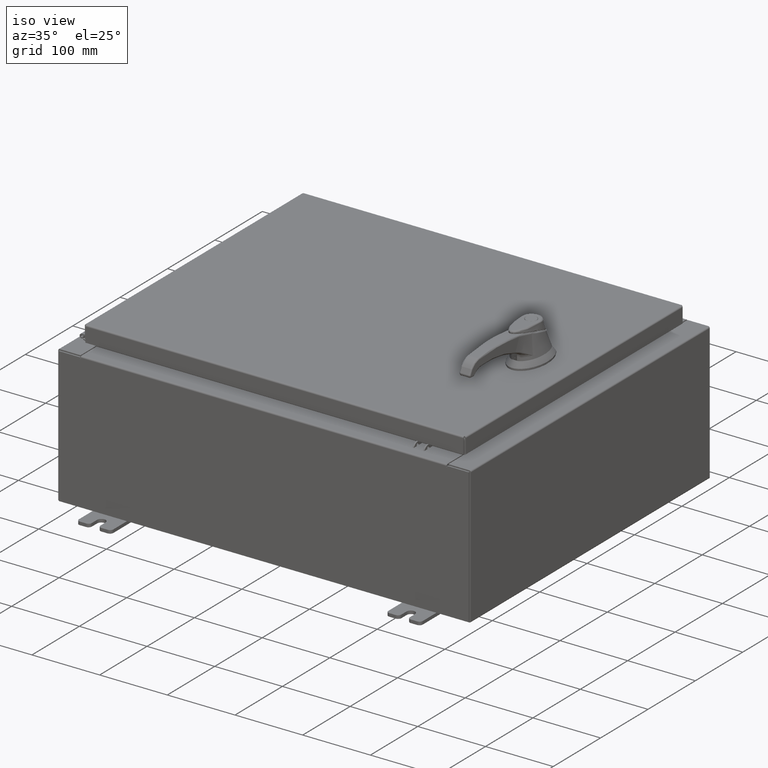
[diagram: clean part render]
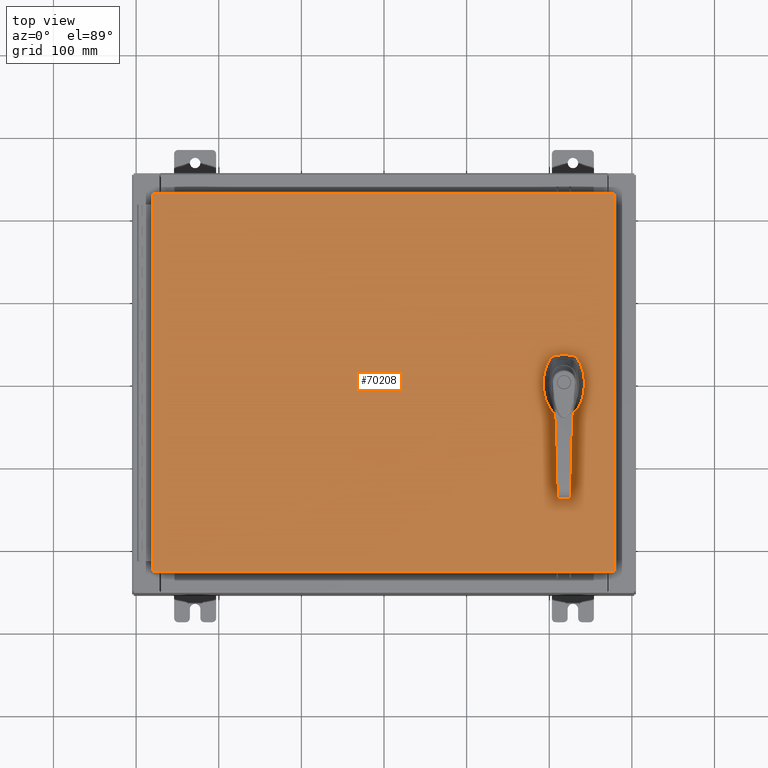
[diagram: tour spotlight — one face highlighted and labeled with its STEP entity id]
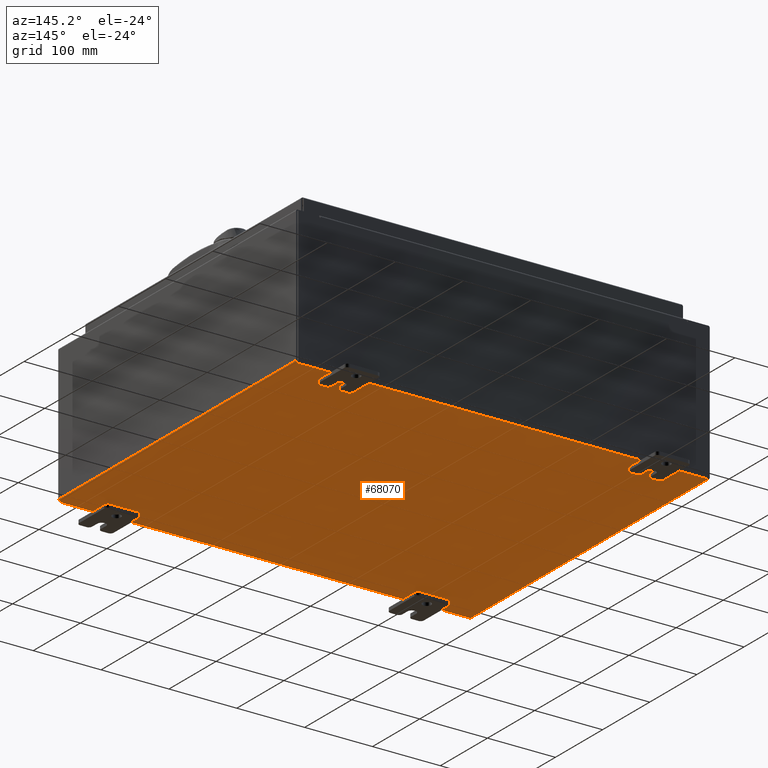
[diagram: tour spotlight — one face highlighted and labeled with its STEP entity id]
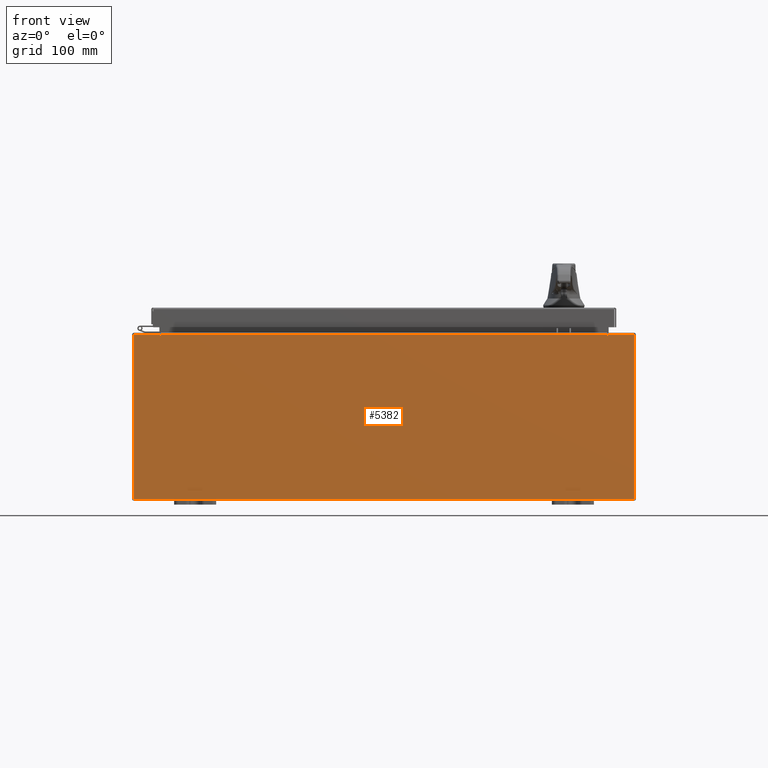
[diagram: tour spotlight — one face highlighted and labeled with its STEP entity id]
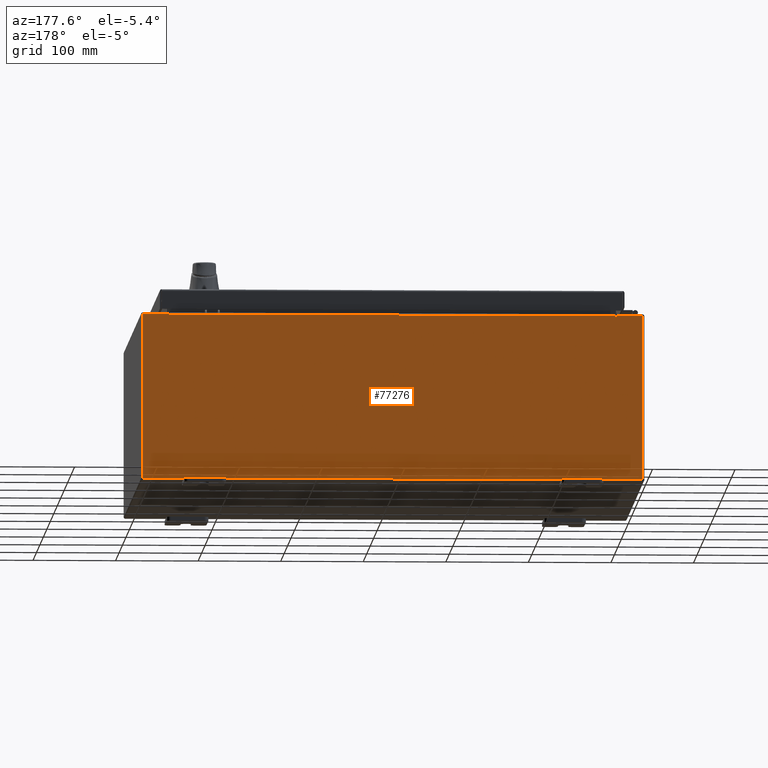
[diagram: tour spotlight — one face highlighted and labeled with its STEP entity id]
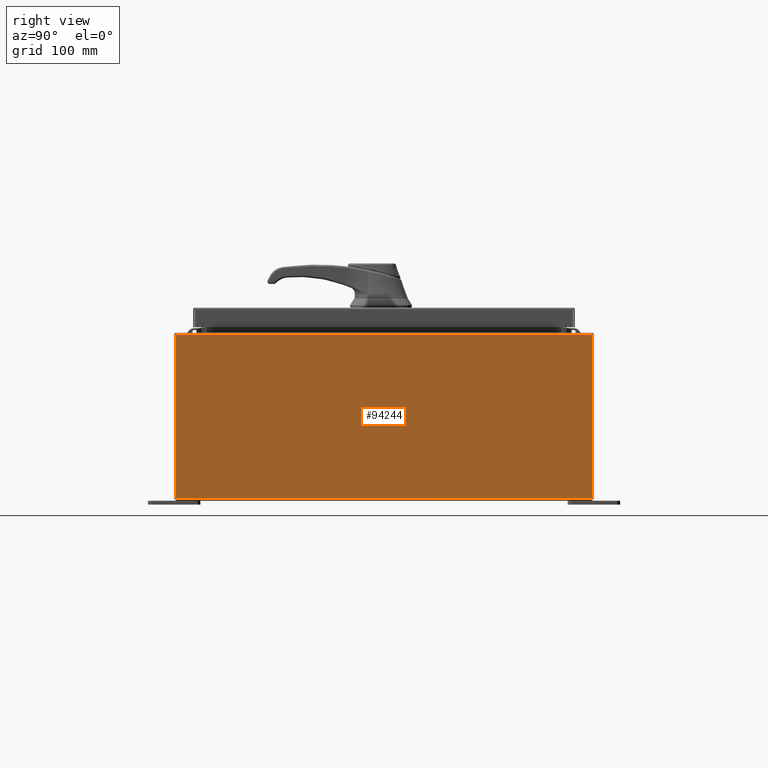
[diagram: tour spotlight — one face highlighted and labeled with its STEP entity id]
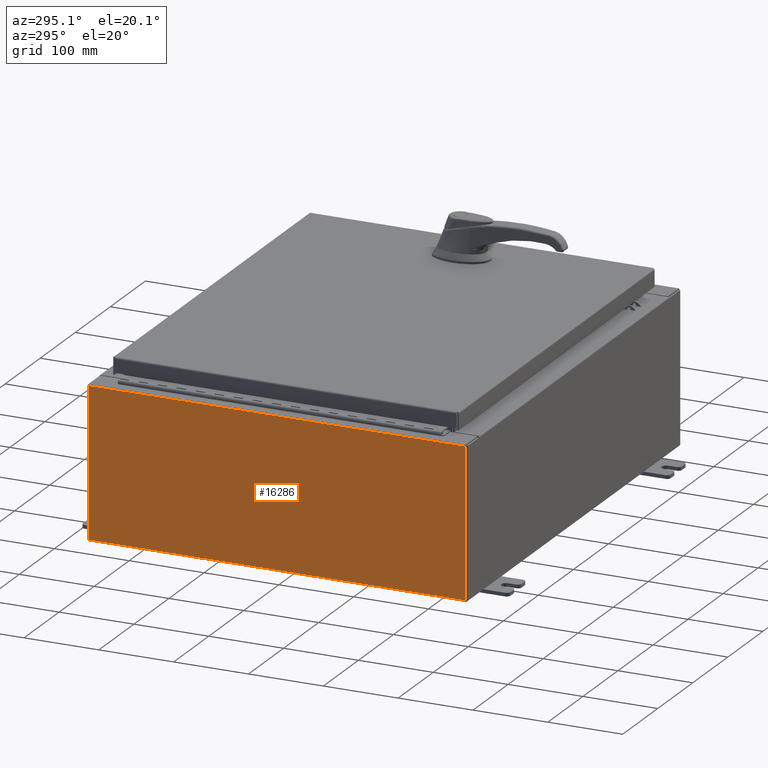
[diagram: tour spotlight — one face highlighted and labeled with its STEP entity id]
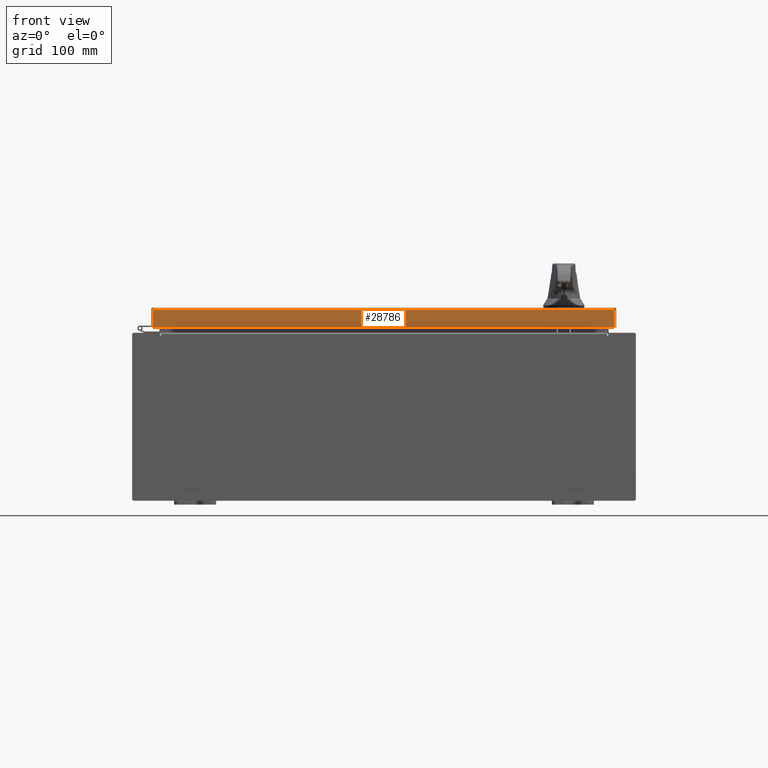
[diagram: tour spotlight — one face highlighted and labeled with its STEP entity id]
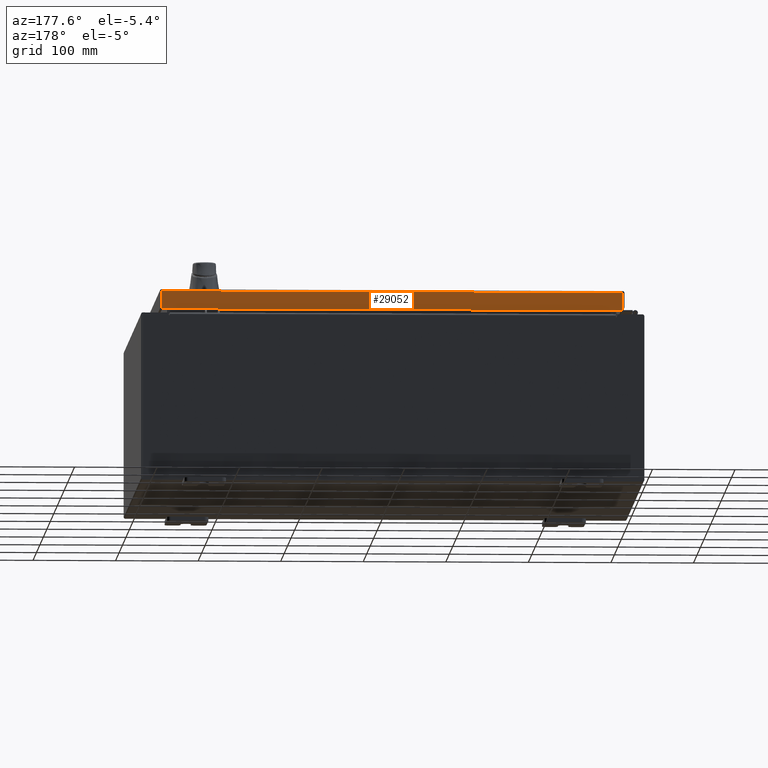
[diagram: tour spotlight — one face highlighted and labeled with its STEP entity id]
A machine part: a face-by-face anatomy tour. The part has 2402 B-rep faces; the first image is the clean iso view, then the 8 largest visible faces are spotlighted one at a time (largest first), each with its STEP entity span.

Face 1 — top view, entity #70208. In plain terms, the highlighted planar face has unit normal (0, 0, -1).
Definition (entity closure, byte-faithful):
#285 = VECTOR ( 'NONE', #85222, 39.37007874015748100 ) ;
#591 = ORIENTED_EDGE ( 'NONE', *, *, #10135, .T. ) ;
#1805 = EDGE_CURVE ( 'NONE', #106779, #90487, #85909, .T. ) ;
#2941 = DIRECTION ( 'NONE',  ( 1.000000000000000000, 0.0000000000000000000, 0.0000000000000000000 ) ) ;
#3165 = VECTOR ( 'NONE', #30396, 39.37007874015748100 ) ;
#3634 = ORIENTED_EDGE ( 'NONE', *, *, #93635, .F. ) ;
#4517 = VERTEX_POINT ( 'NONE', #45780 ) ;
#5559 = DIRECTION ( 'NONE',  ( -0.0000000000000000000, 0.0000000000000000000, 1.000000000000000000 ) ) ;
#5671 = DIRECTION ( 'NONE',  ( -1.000000000000000000, -0.0000000000000000000, -0.0000000000000000000 ) ) ;
#5724 = VECTOR ( 'NONE', #57062, 39.37007874015748100 ) ;
#5802 = ORIENTED_EDGE ( 'NONE', *, *, #98475, .F. ) ;
#5841 = EDGE_CURVE ( 'NONE', #71262, #17567, #65582, .T. ) ;
#7024 = DIRECTION ( 'NONE',  ( -0.0000000000000000000, 0.0000000000000000000, 1.000000000000000000 ) ) ;
#10135 = EDGE_CURVE ( 'NONE', #88581, #93062, #45761, .T. ) ;
#11087 = FACE_BOUND ( 'NONE', #14654, .T. ) ;
#11688 = EDGE_LOOP ( 'NONE', ( #47521, #3634 ) ) ;
#13550 = VECTOR ( 'NONE', #74436, 39.37007874015748100 ) ;
#14457 = CARTESIAN_POINT ( 'NONE',  ( -10.99030000000000000, 9.006299999999999500, -2.048885995248197400E-016 ) ) ;
#14654 = EDGE_LOOP ( 'NONE', ( #80060, #92912, #92523, #5802, #86877, #110512, #65455, #98204 ) ) ;
#14729 = CARTESIAN_POINT ( 'NONE',  ( 10.99030000000000000, -9.006299999999999500, -2.048885995248197400E-016 ) ) ;
#16755 = ORIENTED_EDGE ( 'NONE', *, *, #58533, .T. ) ;
#17449 = EDGE_LOOP ( 'NONE', ( #591, #105437, #53045, #16755 ) ) ;
#17567 = VERTEX_POINT ( 'NONE', #53990 ) ;
#18124 = VERTEX_POINT ( 'NONE', #21928 ) ;
#18509 = LINE ( 'NONE', #72627, #109360 ) ;
#19055 = CARTESIAN_POINT ( 'NONE',  ( -10.99030000000000000, -9.006299999999999500, -2.219626494852214000E-016 ) ) ;
#20822 = CARTESIAN_POINT ( 'NONE',  ( 8.577999999999999400, 0.0000000000000000000, 0.0000000000000000000 ) ) ;
#21928 = CARTESIAN_POINT ( 'NONE',  ( 10.99030000000000000, 9.006299999999999500, -2.219626494852214000E-016 ) ) ;
#26570 = EDGE_CURVE ( 'NONE', #17567, #40537, #18509, .T. ) ;
#27493 = AXIS2_PLACEMENT_3D ( 'NONE', #28177, #105119, #53964 ) ;
#28177 = CARTESIAN_POINT ( 'NONE',  ( 0.0000000000000000000, 0.0000000000000000000, 0.0000000000000000000 ) ) ;
#28231 = CARTESIAN_POINT ( 'NONE',  ( 8.377772629243690300, -0.4029999999999252000, 0.0000000000000000000 ) ) ;
#29379 = DIRECTION ( 'NONE',  ( 1.000000000000000000, 0.0000000000000000000, 0.0000000000000000000 ) ) ;
#30396 = DIRECTION ( 'NONE',  ( -1.000000000000000000, 0.0000000000000000000, 0.0000000000000000000 ) ) ;
#31856 = CARTESIAN_POINT ( 'NONE',  ( 8.577999999999999400, 0.0000000000000000000, 0.0000000000000000000 ) ) ;
#31992 = AXIS2_PLACEMENT_3D ( 'NONE', #20822, #80487, #29379 ) ;
#34910 = VECTOR ( 'NONE', #5671, 39.37007874015748100 ) ;
#36652 = CARTESIAN_POINT ( 'NONE',  ( 8.577999999999999400, -1.338000000000000100, 0.0000000000000000000 ) ) ;
#36998 = CARTESIAN_POINT ( 'NONE',  ( 0.0000000000000000000, -0.4029999999999252000, 0.0000000000000000000 ) ) ;
#37553 = LINE ( 'NONE', #65381, #34910 ) ;
#39765 = CARTESIAN_POINT ( 'NONE',  ( 8.377772629243690300, 0.4029999999999252000, 0.0000000000000000000 ) ) ;
#40411 = DIRECTION ( 'NONE',  ( 1.000000000000000000, 0.0000000000000000000, 0.0000000000000000000 ) ) ;
#40537 = VERTEX_POINT ( 'NONE', #97261 ) ;
#40668 = AXIS2_PLACEMENT_3D ( 'NONE', #58212, #7024, #66727 ) ;
#41188 = CARTESIAN_POINT ( 'NONE',  ( 8.406499999999999400, -1.338000000000000100, 0.0000000000000000000 ) ) ;
#45233 = DIRECTION ( 'NONE',  ( 1.000000000000000000, 0.0000000000000000000, 0.0000000000000000000 ) ) ;
#45761 = LINE ( 'NONE', #73288, #65830 ) ;
#45780 = CARTESIAN_POINT ( 'NONE',  ( 8.749500000000001200, -1.338000000000000100, 0.0000000000000000000 ) ) ;
#47521 = ORIENTED_EDGE ( 'NONE', *, *, #84565, .F. ) ;
#52064 = CARTESIAN_POINT ( 'NONE',  ( 8.778227370756310300, 0.4029999999999252000, 0.0000000000000000000 ) ) ;
#53045 = ORIENTED_EDGE ( 'NONE', *, *, #78525, .T. ) ;
#53232 = PLANE ( 'NONE',  #27493 ) ;
#53819 = FACE_OUTER_BOUND ( 'NONE', #17449, .T. ) ;
#53964 = DIRECTION ( 'NONE',  ( -1.000000000000000000, 0.0000000000000000000, -0.0000000000000000000 ) ) ;
#53990 = CARTESIAN_POINT ( 'NONE',  ( 8.175000000000073500, 0.2002273707563079800, 0.0000000000000000000 ) ) ;
#54068 = DIRECTION ( 'NONE',  ( -0.0000000000000000000, 0.0000000000000000000, 1.000000000000000000 ) ) ;
#55559 = CARTESIAN_POINT ( 'NONE',  ( 8.778227370756310300, -0.4029999999999252000, 0.0000000000000000000 ) ) ;
#56741 = CARTESIAN_POINT ( 'NONE',  ( 8.577999999999999400, 0.0000000000000000000, 0.0000000000000000000 ) ) ;
#56867 = VERTEX_POINT ( 'NONE', #67158 ) ;
#57062 = DIRECTION ( 'NONE',  ( 0.0000000000000000000, -1.000000000000000000, 0.0000000000000000000 ) ) ;
#57732 = EDGE_CURVE ( 'NONE', #82220, #71262, #96614, .T. ) ;
#57876 = VERTEX_POINT ( 'NONE', #67317 ) ;
#57898 = VECTOR ( 'NONE', #67928, 39.37007874015748100 ) ;
#58212 = CARTESIAN_POINT ( 'NONE',  ( 8.577999999999999400, -1.338000000000000100, 0.0000000000000000000 ) ) ;
#58533 = EDGE_CURVE ( 'NONE', #56867, #88581, #73786, .T. ) ;
#58908 = AXIS2_PLACEMENT_3D ( 'NONE', #36652, #96375, #45233 ) ;
#59013 = LINE ( 'NONE', #14729, #13550 ) ;
#61153 = CIRCLE ( 'NONE', #86011, 0.4499999999999156900 ) ;
#62559 = DIRECTION ( 'NONE',  ( 1.000000000000000000, -0.0000000000000000000, -0.0000000000000000000 ) ) ;
#62911 = VERTEX_POINT ( 'NONE', #80868 ) ;
#65270 = DIRECTION ( 'NONE',  ( 1.000000000000000000, 0.0000000000000000000, 0.0000000000000000000 ) ) ;
#65381 = CARTESIAN_POINT ( 'NONE',  ( 10.99030000000000000, 9.006299999999999500, -2.219626494852214000E-016 ) ) ;
#65455 = ORIENTED_EDGE ( 'NONE', *, *, #57732, .F. ) ;
#65582 = CIRCLE ( 'NONE', #98713, 0.4499999999999156900 ) ;
#65830 = VECTOR ( 'NONE', #62559, 39.37007874015748100 ) ;
#66727 = DIRECTION ( 'NONE',  ( 1.000000000000000000, 0.0000000000000000000, 0.0000000000000000000 ) ) ;
#67158 = CARTESIAN_POINT ( 'NONE',  ( -10.99030000000000000, 9.006299999999999500, -2.048885995248197400E-016 ) ) ;
#67317 = CARTESIAN_POINT ( 'NONE',  ( 8.980999999999925300, 0.2002273707563080300, 0.0000000000000000000 ) ) ;
#67928 = DIRECTION ( 'NONE',  ( 1.000000000000000000, 0.0000000000000000000, 0.0000000000000000000 ) ) ;
#68073 = CARTESIAN_POINT ( 'NONE',  ( 8.980999999999925300, 2.450686610769032800E-014, 0.0000000000000000000 ) ) ;
#69439 = CARTESIAN_POINT ( 'NONE',  ( 10.99030000000000000, -9.006299999999999500, -2.048885995248197400E-016 ) ) ;
#70208 = ADVANCED_FACE ( 'NONE', ( #99195, #53819, #11087 ), #53232, .F. ) ;
#71262 = VERTEX_POINT ( 'NONE', #39765 ) ;
#71863 = EDGE_CURVE ( 'NONE', #93062, #18124, #59013, .T. ) ;
#72176 = EDGE_CURVE ( 'NONE', #90487, #62911, #87116, .T. ) ;
#72627 = CARTESIAN_POINT ( 'NONE',  ( 8.175000000000073500, 0.0000000000000000000, 0.0000000000000000000 ) ) ;
#73288 = CARTESIAN_POINT ( 'NONE',  ( -10.99030000000000000, -9.006299999999999500, -2.219626494852214000E-016 ) ) ;
#73786 = LINE ( 'NONE', #14457, #5724 ) ;
#74436 = DIRECTION ( 'NONE',  ( 0.0000000000000000000, 1.000000000000000000, 0.0000000000000000000 ) ) ;
#78525 = EDGE_CURVE ( 'NONE', #18124, #56867, #37553, .T. ) ;
#80060 = ORIENTED_EDGE ( 'NONE', *, *, #104653, .T. ) ;
#80487 = DIRECTION ( 'NONE',  ( -0.0000000000000000000, 0.0000000000000000000, 1.000000000000000000 ) ) ;
#80592 = VERTEX_POINT ( 'NONE', #41188 ) ;
#80868 = CARTESIAN_POINT ( 'NONE',  ( 8.980999999999927000, -0.2002273707563079800, 0.0000000000000000000 ) ) ;
#81209 = DIRECTION ( 'NONE',  ( 0.0000000000000000000, -1.000000000000000000, 0.0000000000000000000 ) ) ;
#82220 = VERTEX_POINT ( 'NONE', #52064 ) ;
#84565 = EDGE_CURVE ( 'NONE', #4517, #80592, #102580, .T. ) ;
#85222 = DIRECTION ( 'NONE',  ( 2.728745808672812900E-015, -1.000000000000000000, 0.0000000000000000000 ) ) ;
#85909 = LINE ( 'NONE', #36998, #57898 ) ;
#86011 = AXIS2_PLACEMENT_3D ( 'NONE', #31856, #91615, #40411 ) ;
#86877 = ORIENTED_EDGE ( 'NONE', *, *, #26570, .F. ) ;
#87116 = CIRCLE ( 'NONE', #110583, 0.4499999999999156900 ) ;
#88143 = CIRCLE ( 'NONE', #40668, 0.1715000000000011500 ) ;
#88581 = VERTEX_POINT ( 'NONE', #19055 ) ;
#90123 = CARTESIAN_POINT ( 'NONE',  ( 0.0000000000000000000, 0.4029999999999252000, 0.0000000000000000000 ) ) ;
#90487 = VERTEX_POINT ( 'NONE', #55559 ) ;
#91615 = DIRECTION ( 'NONE',  ( -0.0000000000000000000, 0.0000000000000000000, 1.000000000000000000 ) ) ;
#92523 = ORIENTED_EDGE ( 'NONE', *, *, #1805, .F. ) ;
#92912 = ORIENTED_EDGE ( 'NONE', *, *, #72176, .F. ) ;
#93062 = VERTEX_POINT ( 'NONE', #69439 ) ;
#93635 = EDGE_CURVE ( 'NONE', #80592, #4517, #88143, .T. ) ;
#93773 = LINE ( 'NONE', #68073, #285 ) ;
#96375 = DIRECTION ( 'NONE',  ( -0.0000000000000000000, 0.0000000000000000000, 1.000000000000000000 ) ) ;
#96614 = LINE ( 'NONE', #90123, #3165 ) ;
#97261 = CARTESIAN_POINT ( 'NONE',  ( 8.175000000000073500, -0.2002273707563079800, 0.0000000000000000000 ) ) ;
#98204 = ORIENTED_EDGE ( 'NONE', *, *, #108050, .F. ) ;
#98475 = EDGE_CURVE ( 'NONE', #40537, #106779, #61153, .T. ) ;
#98713 = AXIS2_PLACEMENT_3D ( 'NONE', #56741, #5559, #65270 ) ;
#99195 = FACE_BOUND ( 'NONE', #11688, .T. ) ;
#101388 = CIRCLE ( 'NONE', #31992, 0.4499999999999156900 ) ;
#102580 = CIRCLE ( 'NONE', #58908, 0.1715000000000011500 ) ;
#104653 = EDGE_CURVE ( 'NONE', #57876, #62911, #93773, .T. ) ;
#105119 = DIRECTION ( 'NONE',  ( 0.0000000000000000000, 0.0000000000000000000, -1.000000000000000000 ) ) ;
#105212 = CARTESIAN_POINT ( 'NONE',  ( 8.577999999999999400, 0.0000000000000000000, 0.0000000000000000000 ) ) ;
#105437 = ORIENTED_EDGE ( 'NONE', *, *, #71863, .T. ) ;
#106779 = VERTEX_POINT ( 'NONE', #28231 ) ;
#108050 = EDGE_CURVE ( 'NONE', #57876, #82220, #101388, .T. ) ;
#109360 = VECTOR ( 'NONE', #81209, 39.37007874015748100 ) ;
#110512 = ORIENTED_EDGE ( 'NONE', *, *, #5841, .F. ) ;
#110583 = AXIS2_PLACEMENT_3D ( 'NONE', #105212, #54068, #2941 ) ;

Face 2 — auxiliary view, entity #68070. In plain terms, the highlighted planar face has unit normal (0, 0, -1).
Definition (entity closure, byte-faithful):
#4475 = ORIENTED_EDGE ( 'NONE', *, *, #66185, .F. ) ;
#9073 = CARTESIAN_POINT ( 'NONE',  ( -11.91230000000000400, -9.925300000000000000, -0.07469999999999994700 ) ) ;
#9557 = DIRECTION ( 'NONE',  ( 0.0000000000000000000, 0.0000000000000000000, -1.000000000000000000 ) ) ;
#18134 = CARTESIAN_POINT ( 'NONE',  ( 0.0000000000000000000, 0.0000000000000000000, -0.07470000000000000300 ) ) ;
#18834 = AXIS2_PLACEMENT_3D ( 'NONE', #18134, #9557, #95002 ) ;
#19537 = LINE ( 'NONE', #61378, #107701 ) ;
#23119 = VERTEX_POINT ( 'NONE', #71577 ) ;
#25781 = EDGE_CURVE ( 'NONE', #52785, #66517, #104106, .T. ) ;
#27379 = DIRECTION ( 'NONE',  ( -1.000000000000000000, -0.0000000000000000000, -0.0000000000000000000 ) ) ;
#29929 = ORIENTED_EDGE ( 'NONE', *, *, #58241, .F. ) ;
#30574 = CARTESIAN_POINT ( 'NONE',  ( -11.91230000000000400, -9.925300000000000000, -0.07469999999999994700 ) ) ;
#35407 = CARTESIAN_POINT ( 'NONE',  ( -12.00000000000000400, -9.925300000000000000, -0.07470000000000000300 ) ) ;
#35517 = ORIENTED_EDGE ( 'NONE', *, *, #52072, .T. ) ;
#36987 = EDGE_LOOP ( 'NONE', ( #29929, #43118, #4475, #35517 ) ) ;
#39787 = LINE ( 'NONE', #49124, #65237 ) ;
#43118 = ORIENTED_EDGE ( 'NONE', *, *, #25781, .T. ) ;
#43231 = VERTEX_POINT ( 'NONE', #82856 ) ;
#43988 = DIRECTION ( 'NONE',  ( 1.000000000000000000, 0.0000000000000000000, 0.0000000000000000000 ) ) ;
#47741 = DIRECTION ( 'NONE',  ( -0.0000000000000000000, 1.000000000000000000, -0.0000000000000000000 ) ) ;
#49124 = CARTESIAN_POINT ( 'NONE',  ( 11.91229999999999800, 9.925300000000000000, -0.07469999999999994700 ) ) ;
#52072 = EDGE_CURVE ( 'NONE', #43231, #23119, #39787, .T. ) ;
#52785 = VERTEX_POINT ( 'NONE', #9073 ) ;
#58241 = EDGE_CURVE ( 'NONE', #52785, #23119, #92557, .T. ) ;
#58721 = VECTOR ( 'NONE', #47741, 39.37007874015748100 ) ;
#61378 = CARTESIAN_POINT ( 'NONE',  ( -12.00000000000000400, 9.925300000000000000, -0.07470000000000000300 ) ) ;
#64509 = VECTOR ( 'NONE', #43988, 39.37007874015748100 ) ;
#65237 = VECTOR ( 'NONE', #108896, 39.37007874015748100 ) ;
#66185 = EDGE_CURVE ( 'NONE', #43231, #66517, #19537, .T. ) ;
#66517 = VERTEX_POINT ( 'NONE', #90011 ) ;
#68070 = ADVANCED_FACE ( 'NONE', ( #72731 ), #86401, .T. ) ;
#71577 = CARTESIAN_POINT ( 'NONE',  ( 11.91229999999998900, -9.925300000000000000, -0.07470000000000000300 ) ) ;
#72731 = FACE_OUTER_BOUND ( 'NONE', #36987, .T. ) ;
#82856 = CARTESIAN_POINT ( 'NONE',  ( 11.91229999999999800, 9.925299999999996500, -0.07469999999999994700 ) ) ;
#86401 = PLANE ( 'NONE',  #18834 ) ;
#90011 = CARTESIAN_POINT ( 'NONE',  ( -11.91230000000000400, 9.925300000000000000, -0.07470000000000000300 ) ) ;
#92557 = LINE ( 'NONE', #35407, #64509 ) ;
#95002 = DIRECTION ( 'NONE',  ( -1.000000000000000000, 0.0000000000000000000, -0.0000000000000000000 ) ) ;
#104106 = LINE ( 'NONE', #30574, #58721 ) ;
#107701 = VECTOR ( 'NONE', #27379, 39.37007874015748100 ) ;
#108896 = DIRECTION ( 'NONE',  ( -0.0000000000000000000, -1.000000000000000000, -0.0000000000000000000 ) ) ;

Face 3 — front view, entity #5382. In plain terms, the highlighted planar face has unit normal (-0, 1, -0).
Definition (entity closure, byte-faithful):
#195 = VECTOR ( 'NONE', #47698, 39.37007874015748100 ) ;
#877 = ORIENTED_EDGE ( 'NONE', *, *, #79832, .T. ) ;
#942 = VERTEX_POINT ( 'NONE', #41520 ) ;
#5101 = CARTESIAN_POINT ( 'NONE',  ( -11.92530000000000000, 0.0000000000000000000, 3.925299999999999600 ) ) ;
#5382 = ADVANCED_FACE ( 'NONE', ( #86993 ), #30742, .F. ) ;
#5520 = LINE ( 'NONE', #21979, #195 ) ;
#5535 = VERTEX_POINT ( 'NONE', #41141 ) ;
#5810 = EDGE_CURVE ( 'NONE', #942, #42188, #5520, .T. ) ;
#10566 = CARTESIAN_POINT ( 'NONE',  ( -10.63720000000000400, -0.0000000000000000000, 0.0000000000000000000 ) ) ;
#12234 = VECTOR ( 'NONE', #48439, 39.37007874015748100 ) ;
#13666 = DIRECTION ( 'NONE',  ( 1.000000000000000000, 0.0000000000000000000, 0.0000000000000000000 ) ) ;
#16315 = ORIENTED_EDGE ( 'NONE', *, *, #103612, .T. ) ;
#16947 = VECTOR ( 'NONE', #43676, 39.37007874015748100 ) ;
#17979 = ORIENTED_EDGE ( 'NONE', *, *, #5810, .F. ) ;
#18121 = EDGE_CURVE ( 'NONE', #5535, #99711, #43554, .T. ) ;
#18468 = DIRECTION ( 'NONE',  ( -1.000000000000000000, -0.0000000000000000000, -0.0000000000000000000 ) ) ;
#20865 = VECTOR ( 'NONE', #81597, 39.37007874015748100 ) ;
#21821 = CARTESIAN_POINT ( 'NONE',  ( 0.0000000000000000000, 0.0000000000000000000, 0.0000000000000000000 ) ) ;
#21979 = CARTESIAN_POINT ( 'NONE',  ( -10.67455000000000200, -0.0000000000000000000, 0.0000000000000000000 ) ) ;
#22275 = EDGE_CURVE ( 'NONE', #57959, #53076, #42997, .T. ) ;
#22614 = VECTOR ( 'NONE', #18468, 39.37007874015748100 ) ;
#25063 = ORIENTED_EDGE ( 'NONE', *, *, #30444, .T. ) ;
#25321 = LINE ( 'NONE', #69580, #22614 ) ;
#27711 = DIRECTION ( 'NONE',  ( 0.0000000000000000000, 0.0000000000000000000, -1.000000000000000000 ) ) ;
#28977 = AXIS2_PLACEMENT_3D ( 'NONE', #99527, #48376, #108148 ) ;
#29041 = DIRECTION ( 'NONE',  ( 0.0000000000000000000, 0.0000000000000000000, 1.000000000000000000 ) ) ;
#30444 = EDGE_CURVE ( 'NONE', #63559, #48679, #105104, .T. ) ;
#30742 = PLANE ( 'NONE',  #82128 ) ;
#31099 = ORIENTED_EDGE ( 'NONE', *, *, #51940, .F. ) ;
#31643 = CARTESIAN_POINT ( 'NONE',  ( -10.67455000000000200, 0.0000000000000000000, 3.925299999999999600 ) ) ;
#32517 = VECTOR ( 'NONE', #29041, 39.37007874015748100 ) ;
#34931 = LINE ( 'NONE', #108210, #12234 ) ;
#35011 = VECTOR ( 'NONE', #78896, 39.37007874015748100 ) ;
#36303 = DIRECTION ( 'NONE',  ( -0.0000000000000000000, 1.000000000000000000, -0.0000000000000000000 ) ) ;
#36497 = EDGE_CURVE ( 'NONE', #73737, #70426, #80600, .T. ) ;
#37324 = CARTESIAN_POINT ( 'NONE',  ( -10.63720000000000400, -0.0000000000000000000, 3.874949999999999700 ) ) ;
#39077 = LINE ( 'NONE', #5101, #59227 ) ;
#40371 = ORIENTED_EDGE ( 'NONE', *, *, #90849, .T. ) ;
#41141 = CARTESIAN_POINT ( 'NONE',  ( 10.67455000000000200, 0.0000000000000000000, 3.925299999999999600 ) ) ;
#41520 = CARTESIAN_POINT ( 'NONE',  ( -10.67455000000000200, 0.0000000000000000000, 3.874949999999999700 ) ) ;
#42188 = VERTEX_POINT ( 'NONE', #31643 ) ;
#42513 = EDGE_LOOP ( 'NONE', ( #17979, #31099, #80567, #877, #93075, #71882, #73938, #40371, #25063, #96477, #93479, #16315 ) ) ;
#42997 = LINE ( 'NONE', #10566, #108480 ) ;
#43554 = LINE ( 'NONE', #89844, #20865 ) ;
#43676 = DIRECTION ( 'NONE',  ( 0.0000000000000000000, 0.0000000000000000000, -1.000000000000000000 ) ) ;
#44569 = CARTESIAN_POINT ( 'NONE',  ( -11.92530000000000000, 0.0000000000000000000, 3.925299999999999600 ) ) ;
#45185 = CIRCLE ( 'NONE', #28977, 0.01867499999999949400 ) ;
#47057 = DIRECTION ( 'NONE',  ( -0.0000000000000000000, -0.0000000000000000000, 1.000000000000000000 ) ) ;
#47698 = DIRECTION ( 'NONE',  ( 0.0000000000000000000, 0.0000000000000000000, 1.000000000000000000 ) ) ;
#47905 = DIRECTION ( 'NONE',  ( 0.0000000000000000000, -0.0000000000000000000, -1.000000000000000000 ) ) ;
#48188 = AXIS2_PLACEMENT_3D ( 'NONE', #87463, #36303, #96065 ) ;
#48376 = DIRECTION ( 'NONE',  ( -0.0000000000000000000, 1.000000000000000000, -0.0000000000000000000 ) ) ;
#48439 = DIRECTION ( 'NONE',  ( 1.000000000000000000, 0.0000000000000000000, 0.0000000000000000000 ) ) ;
#48679 = VERTEX_POINT ( 'NONE', #98180 ) ;
#50590 = VERTEX_POINT ( 'NONE', #60533 ) ;
#51566 = LINE ( 'NONE', #64276, #94318 ) ;
#51940 = EDGE_CURVE ( 'NONE', #53076, #942, #45185, .T. ) ;
#53076 = VERTEX_POINT ( 'NONE', #37324 ) ;
#57782 = LINE ( 'NONE', #44569, #35011 ) ;
#57959 = VERTEX_POINT ( 'NONE', #94204 ) ;
#59227 = VECTOR ( 'NONE', #13666, 39.37007874015748100 ) ;
#60533 = CARTESIAN_POINT ( 'NONE',  ( -11.92530000000000000, 0.0000000000000000000, -3.925299999999999600 ) ) ;
#63559 = VERTEX_POINT ( 'NONE', #95601 ) ;
#64276 = CARTESIAN_POINT ( 'NONE',  ( -11.92530000000000000, 0.0000000000000000000, 3.925299999999999600 ) ) ;
#66475 = EDGE_CURVE ( 'NONE', #50590, #87037, #51566, .T. ) ;
#69580 = CARTESIAN_POINT ( 'NONE',  ( -11.92530000000000000, 0.0000000000000000000, -3.925299999999999600 ) ) ;
#70426 = VERTEX_POINT ( 'NONE', #110276 ) ;
#71882 = ORIENTED_EDGE ( 'NONE', *, *, #86863, .F. ) ;
#73737 = VERTEX_POINT ( 'NONE', #79848 ) ;
#73938 = ORIENTED_EDGE ( 'NONE', *, *, #18121, .F. ) ;
#74211 = CIRCLE ( 'NONE', #48188, 0.01867499999999949400 ) ;
#78896 = DIRECTION ( 'NONE',  ( 1.000000000000000000, 0.0000000000000000000, 0.0000000000000000000 ) ) ;
#79631 = CARTESIAN_POINT ( 'NONE',  ( 10.67455000000000200, 0.0000000000000000000, 3.874949999999999700 ) ) ;
#79832 = EDGE_CURVE ( 'NONE', #57959, #70426, #34931, .T. ) ;
#79848 = CARTESIAN_POINT ( 'NONE',  ( 10.63720000000000400, 0.0000000000000000000, 3.874949999999999700 ) ) ;
#80148 = CARTESIAN_POINT ( 'NONE',  ( 10.63720000000000400, 0.0000000000000000000, 0.0000000000000000000 ) ) ;
#80567 = ORIENTED_EDGE ( 'NONE', *, *, #22275, .F. ) ;
#80600 = LINE ( 'NONE', #80148, #32517 ) ;
#81597 = DIRECTION ( 'NONE',  ( -4.340572780400004900E-014, 0.0000000000000000000, -1.000000000000000000 ) ) ;
#82128 = AXIS2_PLACEMENT_3D ( 'NONE', #21821, #99049, #47905 ) ;
#82287 = EDGE_CURVE ( 'NONE', #48679, #50590, #25321, .T. ) ;
#86863 = EDGE_CURVE ( 'NONE', #99711, #73737, #74211, .T. ) ;
#86993 = FACE_OUTER_BOUND ( 'NONE', #42513, .T. ) ;
#87037 = VERTEX_POINT ( 'NONE', #89528 ) ;
#87463 = CARTESIAN_POINT ( 'NONE',  ( 10.65587500000000200, 0.0000000000000000000, 3.874949999999999700 ) ) ;
#89528 = CARTESIAN_POINT ( 'NONE',  ( -11.92530000000000000, 0.0000000000000000000, 3.925299999999999600 ) ) ;
#89844 = CARTESIAN_POINT ( 'NONE',  ( 10.67454999999983300, -0.0000000000000000000, -4.633366117301815000E-013 ) ) ;
#90849 = EDGE_CURVE ( 'NONE', #5535, #63559, #57782, .T. ) ;
#93075 = ORIENTED_EDGE ( 'NONE', *, *, #36497, .F. ) ;
#93479 = ORIENTED_EDGE ( 'NONE', *, *, #66475, .T. ) ;
#94204 = CARTESIAN_POINT ( 'NONE',  ( -10.63720000000000400, 1.024442997624098700E-016, 3.912299999999999700 ) ) ;
#94318 = VECTOR ( 'NONE', #47057, 39.37007874015748100 ) ;
#95601 = CARTESIAN_POINT ( 'NONE',  ( 11.92530000000000000, 0.0000000000000000000, 3.925299999999999600 ) ) ;
#96065 = DIRECTION ( 'NONE',  ( 0.0000000000000000000, 0.0000000000000000000, -1.000000000000000000 ) ) ;
#96477 = ORIENTED_EDGE ( 'NONE', *, *, #82287, .T. ) ;
#98180 = CARTESIAN_POINT ( 'NONE',  ( 11.92530000000000000, 0.0000000000000000000, -3.925299999999999600 ) ) ;
#99049 = DIRECTION ( 'NONE',  ( 0.0000000000000000000, -1.000000000000000000, 0.0000000000000000000 ) ) ;
#99527 = CARTESIAN_POINT ( 'NONE',  ( -10.65587500000000200, 0.0000000000000000000, 3.874949999999999700 ) ) ;
#99711 = VERTEX_POINT ( 'NONE', #79631 ) ;
#103447 = CARTESIAN_POINT ( 'NONE',  ( 11.92530000000000000, 0.0000000000000000000, 3.925299999999999600 ) ) ;
#103612 = EDGE_CURVE ( 'NONE', #87037, #42188, #39077, .T. ) ;
#105104 = LINE ( 'NONE', #103447, #16947 ) ;
#108148 = DIRECTION ( 'NONE',  ( 0.0000000000000000000, 0.0000000000000000000, -1.000000000000000000 ) ) ;
#108210 = CARTESIAN_POINT ( 'NONE',  ( -10.63720000000000400, 1.024442997624098700E-016, 3.912299999999999700 ) ) ;
#108480 = VECTOR ( 'NONE', #27711, 39.37007874015748100 ) ;
#110276 = CARTESIAN_POINT ( 'NONE',  ( 10.63720000000000400, 0.0000000000000000000, 3.912299999999999700 ) ) ;

Face 4 — auxiliary view, entity #77276. In plain terms, the highlighted planar face has unit normal (0, -1, 0).
Definition (entity closure, byte-faithful):
#307 = CARTESIAN_POINT ( 'NONE',  ( -11.92530000000000000, 0.0000000000000000000, -3.925299999999999600 ) ) ;
#909 = EDGE_CURVE ( 'NONE', #80252, #64990, #32548, .T. ) ;
#2554 = CARTESIAN_POINT ( 'NONE',  ( -11.92530000000000000, 0.0000000000000000000, -3.925299999999999600 ) ) ;
#2999 = CARTESIAN_POINT ( 'NONE',  ( -10.63720000000000400, -0.0000000000000000000, 0.0000000000000000000 ) ) ;
#3020 = VERTEX_POINT ( 'NONE', #66838 ) ;
#3038 = CARTESIAN_POINT ( 'NONE',  ( 0.0000000000000000000, 0.0000000000000000000, 0.0000000000000000000 ) ) ;
#3833 = AXIS2_PLACEMENT_3D ( 'NONE', #45919, #105675, #54570 ) ;
#3858 = VECTOR ( 'NONE', #90375, 39.37007874015748100 ) ;
#5816 = DIRECTION ( 'NONE',  ( 1.000000000000000000, 0.0000000000000000000, 0.0000000000000000000 ) ) ;
#6160 = EDGE_CURVE ( 'NONE', #62773, #68204, #9509, .T. ) ;
#7842 = ORIENTED_EDGE ( 'NONE', *, *, #103453, .F. ) ;
#8484 = DIRECTION ( 'NONE',  ( -4.340572780400004900E-014, 0.0000000000000000000, -1.000000000000000000 ) ) ;
#9509 = LINE ( 'NONE', #67854, #72206 ) ;
#11610 = DIRECTION ( 'NONE',  ( 0.0000000000000000000, -1.000000000000000000, 0.0000000000000000000 ) ) ;
#12065 = ORIENTED_EDGE ( 'NONE', *, *, #65134, .T. ) ;
#12076 = VECTOR ( 'NONE', #8484, 39.37007874015748100 ) ;
#13154 = EDGE_CURVE ( 'NONE', #99947, #40363, #80154, .T. ) ;
#15107 = EDGE_CURVE ( 'NONE', #99947, #110462, #29210, .T. ) ;
#15142 = CARTESIAN_POINT ( 'NONE',  ( 11.92530000000000000, 0.0000000000000000000, -3.925299999999999600 ) ) ;
#16093 = VECTOR ( 'NONE', #71249, 39.37007874015748100 ) ;
#16380 = ORIENTED_EDGE ( 'NONE', *, *, #93261, .F. ) ;
#18027 = DIRECTION ( 'NONE',  ( -0.0000000000000000000, 1.000000000000000000, -0.0000000000000000000 ) ) ;
#20054 = VERTEX_POINT ( 'NONE', #109644 ) ;
#24391 = DIRECTION ( 'NONE',  ( 1.000000000000000000, 0.0000000000000000000, 0.0000000000000000000 ) ) ;
#24459 = LINE ( 'NONE', #105180, #64518 ) ;
#26180 = ORIENTED_EDGE ( 'NONE', *, *, #13154, .F. ) ;
#27341 = VECTOR ( 'NONE', #45410, 39.37007874015748100 ) ;
#27939 = LINE ( 'NONE', #29733, #47944 ) ;
#29210 = LINE ( 'NONE', #81739, #3858 ) ;
#29733 = CARTESIAN_POINT ( 'NONE',  ( 11.92530000000000000, 0.0000000000000000000, 3.925299999999999600 ) ) ;
#32548 = LINE ( 'NONE', #75509, #75283 ) ;
#33010 = LINE ( 'NONE', #99470, #53064 ) ;
#33233 = LINE ( 'NONE', #37221, #56006 ) ;
#33831 = CARTESIAN_POINT ( 'NONE',  ( 10.67454999999983300, -0.0000000000000000000, -4.633366117301815000E-013 ) ) ;
#37221 = CARTESIAN_POINT ( 'NONE',  ( -11.92530000000000000, 0.0000000000000000000, 3.925299999999999600 ) ) ;
#37507 = CARTESIAN_POINT ( 'NONE',  ( -11.92530000000000000, 0.0000000000000000000, 3.925299999999999600 ) ) ;
#38664 = ORIENTED_EDGE ( 'NONE', *, *, #49481, .T. ) ;
#40363 = VERTEX_POINT ( 'NONE', #50637 ) ;
#40635 = VERTEX_POINT ( 'NONE', #56614 ) ;
#45401 = DIRECTION ( 'NONE',  ( 0.0000000000000000000, 0.0000000000000000000, 1.000000000000000000 ) ) ;
#45410 = DIRECTION ( 'NONE',  ( -1.000000000000000000, -0.0000000000000000000, -0.0000000000000000000 ) ) ;
#45919 = CARTESIAN_POINT ( 'NONE',  ( -10.65587500000000200, 0.0000000000000000000, 3.874949999999999700 ) ) ;
#47944 = VECTOR ( 'NONE', #80876, 39.37007874015748100 ) ;
#48609 = EDGE_CURVE ( 'NONE', #3020, #40635, #68119, .T. ) ;
#48734 = ORIENTED_EDGE ( 'NONE', *, *, #62251, .F. ) ;
#49481 = EDGE_CURVE ( 'NONE', #110462, #82118, #27939, .T. ) ;
#50637 = CARTESIAN_POINT ( 'NONE',  ( 10.67455000000000200, 0.0000000000000000000, 3.874949999999999700 ) ) ;
#53064 = VECTOR ( 'NONE', #5816, 39.37007874015748100 ) ;
#54570 = DIRECTION ( 'NONE',  ( 0.0000000000000000000, 0.0000000000000000000, -1.000000000000000000 ) ) ;
#56006 = VECTOR ( 'NONE', #88361, 39.37007874015748100 ) ;
#56187 = EDGE_CURVE ( 'NONE', #82118, #93806, #72717, .T. ) ;
#56614 = CARTESIAN_POINT ( 'NONE',  ( -10.67455000000000200, 0.0000000000000000000, 3.874949999999999700 ) ) ;
#61144 = ORIENTED_EDGE ( 'NONE', *, *, #909, .T. ) ;
#62251 = EDGE_CURVE ( 'NONE', #40363, #62773, #92128, .T. ) ;
#62773 = VERTEX_POINT ( 'NONE', #104844 ) ;
#64518 = VECTOR ( 'NONE', #45401, 39.37007874015748100 ) ;
#64990 = VERTEX_POINT ( 'NONE', #105166 ) ;
#65134 = EDGE_CURVE ( 'NONE', #20054, #68204, #33010, .T. ) ;
#66838 = CARTESIAN_POINT ( 'NONE',  ( -10.63720000000000400, -0.0000000000000000000, 3.874949999999999700 ) ) ;
#67854 = CARTESIAN_POINT ( 'NONE',  ( 10.63720000000000400, 0.0000000000000000000, 0.0000000000000000000 ) ) ;
#68119 = CIRCLE ( 'NONE', #3833, 0.01867499999999949400 ) ;
#68204 = VERTEX_POINT ( 'NONE', #105082 ) ;
#69150 = CARTESIAN_POINT ( 'NONE',  ( 10.65587500000000200, 0.0000000000000000000, 3.874949999999999700 ) ) ;
#71249 = DIRECTION ( 'NONE',  ( 0.0000000000000000000, 0.0000000000000000000, -1.000000000000000000 ) ) ;
#71286 = DIRECTION ( 'NONE',  ( 0.0000000000000000000, -0.0000000000000000000, -1.000000000000000000 ) ) ;
#72206 = VECTOR ( 'NONE', #76401, 39.37007874015748100 ) ;
#72717 = LINE ( 'NONE', #2554, #27341 ) ;
#74720 = ORIENTED_EDGE ( 'NONE', *, *, #15107, .T. ) ;
#75283 = VECTOR ( 'NONE', #24391, 39.37007874015748100 ) ;
#75509 = CARTESIAN_POINT ( 'NONE',  ( -11.92530000000000000, 0.0000000000000000000, 3.925299999999999600 ) ) ;
#75688 = AXIS2_PLACEMENT_3D ( 'NONE', #3038, #11610, #71286 ) ;
#76328 = EDGE_LOOP ( 'NONE', ( #7842, #94785, #16380, #12065, #83407, #48734, #26180, #74720, #38664, #101140, #79414, #61144 ) ) ;
#76401 = DIRECTION ( 'NONE',  ( 0.0000000000000000000, 0.0000000000000000000, 1.000000000000000000 ) ) ;
#76468 = FACE_OUTER_BOUND ( 'NONE', #76328, .T. ) ;
#77276 = ADVANCED_FACE ( 'NONE', ( #76468 ), #105308, .F. ) ;
#77715 = DIRECTION ( 'NONE',  ( 0.0000000000000000000, 0.0000000000000000000, -1.000000000000000000 ) ) ;
#79414 = ORIENTED_EDGE ( 'NONE', *, *, #108023, .T. ) ;
#80154 = LINE ( 'NONE', #33831, #12076 ) ;
#80252 = VERTEX_POINT ( 'NONE', #37507 ) ;
#80626 = CARTESIAN_POINT ( 'NONE',  ( 11.92530000000000000, 0.0000000000000000000, 3.925299999999999600 ) ) ;
#80876 = DIRECTION ( 'NONE',  ( 0.0000000000000000000, 0.0000000000000000000, -1.000000000000000000 ) ) ;
#81739 = CARTESIAN_POINT ( 'NONE',  ( -11.92530000000000000, 0.0000000000000000000, 3.925299999999999600 ) ) ;
#82118 = VERTEX_POINT ( 'NONE', #15142 ) ;
#83407 = ORIENTED_EDGE ( 'NONE', *, *, #6160, .F. ) ;
#84159 = LINE ( 'NONE', #2999, #16093 ) ;
#88361 = DIRECTION ( 'NONE',  ( -0.0000000000000000000, -0.0000000000000000000, 1.000000000000000000 ) ) ;
#90375 = DIRECTION ( 'NONE',  ( 1.000000000000000000, 0.0000000000000000000, 0.0000000000000000000 ) ) ;
#92128 = CIRCLE ( 'NONE', #98765, 0.01867499999999949400 ) ;
#93261 = EDGE_CURVE ( 'NONE', #20054, #3020, #84159, .T. ) ;
#93806 = VERTEX_POINT ( 'NONE', #307 ) ;
#94785 = ORIENTED_EDGE ( 'NONE', *, *, #48609, .F. ) ;
#98765 = AXIS2_PLACEMENT_3D ( 'NONE', #69150, #18027, #77715 ) ;
#99470 = CARTESIAN_POINT ( 'NONE',  ( -10.63720000000000400, 1.024442997624098700E-016, 3.912299999999999700 ) ) ;
#99947 = VERTEX_POINT ( 'NONE', #108365 ) ;
#101140 = ORIENTED_EDGE ( 'NONE', *, *, #56187, .T. ) ;
#103453 = EDGE_CURVE ( 'NONE', #40635, #64990, #24459, .T. ) ;
#104844 = CARTESIAN_POINT ( 'NONE',  ( 10.63720000000000400, 0.0000000000000000000, 3.874949999999999700 ) ) ;
#105082 = CARTESIAN_POINT ( 'NONE',  ( 10.63720000000000400, 0.0000000000000000000, 3.912299999999999700 ) ) ;
#105166 = CARTESIAN_POINT ( 'NONE',  ( -10.67455000000000200, 0.0000000000000000000, 3.925299999999999600 ) ) ;
#105180 = CARTESIAN_POINT ( 'NONE',  ( -10.67455000000000200, -0.0000000000000000000, 0.0000000000000000000 ) ) ;
#105308 = PLANE ( 'NONE',  #75688 ) ;
#105675 = DIRECTION ( 'NONE',  ( -0.0000000000000000000, 1.000000000000000000, -0.0000000000000000000 ) ) ;
#108023 = EDGE_CURVE ( 'NONE', #93806, #80252, #33233, .T. ) ;
#108365 = CARTESIAN_POINT ( 'NONE',  ( 10.67455000000000200, 0.0000000000000000000, 3.925299999999999600 ) ) ;
#109644 = CARTESIAN_POINT ( 'NONE',  ( -10.63720000000000400, 1.024442997624098700E-016, 3.912299999999999700 ) ) ;
#110462 = VERTEX_POINT ( 'NONE', #80626 ) ;

Face 5 — right view, entity #94244. In plain terms, the highlighted planar face has unit normal (-1, 0, 0).
Definition (entity closure, byte-faithful):
#3288 = VERTEX_POINT ( 'NONE', #10466 ) ;
#7678 = LINE ( 'NONE', #84095, #10360 ) ;
#7899 = AXIS2_PLACEMENT_3D ( 'NONE', #105123, #105820, #54707 ) ;
#9046 = VERTEX_POINT ( 'NONE', #91844 ) ;
#10360 = VECTOR ( 'NONE', #32994, 39.37007874015748100 ) ;
#10466 = CARTESIAN_POINT ( 'NONE',  ( 11.99999999999999800, -9.925300000000000000, 0.01299999999999983600 ) ) ;
#11613 = VECTOR ( 'NONE', #27757, 39.37007874015748100 ) ;
#13249 = CARTESIAN_POINT ( 'NONE',  ( 11.99999999999999800, 9.925300000000000000, -4.054232992619533500E-014 ) ) ;
#14223 = ORIENTED_EDGE ( 'NONE', *, *, #65465, .T. ) ;
#21683 = EDGE_CURVE ( 'NONE', #95015, #55833, #97828, .T. ) ;
#23680 = EDGE_LOOP ( 'NONE', ( #50078, #14223, #107968, #105318 ) ) ;
#27170 = CARTESIAN_POINT ( 'NONE',  ( 11.99999999999999800, -9.925300000000001800, 0.01299999999999984700 ) ) ;
#27757 = DIRECTION ( 'NONE',  ( -3.584876173029202900E-015, 2.757597056176310300E-016, -1.000000000000000000 ) ) ;
#32994 = DIRECTION ( 'NONE',  ( -0.0000000000000000000, -1.000000000000000000, -0.0000000000000000000 ) ) ;
#36295 = CARTESIAN_POINT ( 'NONE',  ( 11.99999999999999800, -9.925300000000000000, -4.601632553852868400E-014 ) ) ;
#50078 = ORIENTED_EDGE ( 'NONE', *, *, #98640, .T. ) ;
#52554 = DIRECTION ( 'NONE',  ( -0.0000000000000000000, -1.000000000000000000, -0.0000000000000000000 ) ) ;
#54707 = DIRECTION ( 'NONE',  ( 3.584876173029202900E-015, 0.0000000000000000000, 1.000000000000000000 ) ) ;
#55833 = VERTEX_POINT ( 'NONE', #58626 ) ;
#58626 = CARTESIAN_POINT ( 'NONE',  ( 12.00000000000002700, 9.925299999999991100, 7.837599999999999200 ) ) ;
#59757 = LINE ( 'NONE', #36295, #11613 ) ;
#65465 = EDGE_CURVE ( 'NONE', #9046, #3288, #59757, .T. ) ;
#77929 = EDGE_CURVE ( 'NONE', #95015, #3288, #109826, .T. ) ;
#81507 = DIRECTION ( 'NONE',  ( 3.584876173029202900E-015, -2.757597056176310300E-016, 1.000000000000000000 ) ) ;
#84095 = CARTESIAN_POINT ( 'NONE',  ( 12.00000000000002700, 9.925299999999992900, 7.837599999999999200 ) ) ;
#89438 = FACE_OUTER_BOUND ( 'NONE', #23680, .T. ) ;
#91844 = CARTESIAN_POINT ( 'NONE',  ( 12.00000000000002700, -9.925300000000001800, 7.837599999999999200 ) ) ;
#94244 = ADVANCED_FACE ( 'NONE', ( #89438 ), #97218, .F. ) ;
#95015 = VERTEX_POINT ( 'NONE', #107163 ) ;
#95178 = VECTOR ( 'NONE', #81507, 39.37007874015748100 ) ;
#97218 = PLANE ( 'NONE',  #7899 ) ;
#97828 = LINE ( 'NONE', #13249, #95178 ) ;
#98640 = EDGE_CURVE ( 'NONE', #55833, #9046, #7678, .T. ) ;
#105123 = CARTESIAN_POINT ( 'NONE',  ( 11.99999999999999800, 0.0000000000000000000, -4.327932773236200600E-014 ) ) ;
#105318 = ORIENTED_EDGE ( 'NONE', *, *, #21683, .T. ) ;
#105820 = DIRECTION ( 'NONE',  ( -1.000000000000000000, 0.0000000000000000000, 3.584876173029202900E-015 ) ) ;
#107125 = VECTOR ( 'NONE', #52554, 39.37007874015748100 ) ;
#107163 = CARTESIAN_POINT ( 'NONE',  ( 11.99999999999999800, 9.925299999999998200, 0.01299999999999984700 ) ) ;
#107968 = ORIENTED_EDGE ( 'NONE', *, *, #77929, .F. ) ;
#109826 = LINE ( 'NONE', #27170, #107125 ) ;

Face 6 — auxiliary view, entity #16286. In plain terms, the highlighted planar face has unit normal (1, 0, 0).
Definition (entity closure, byte-faithful):
#2128 = DIRECTION ( 'NONE',  ( 3.584876173029202900E-015, 0.0000000000000000000, -1.000000000000000000 ) ) ;
#11559 = VECTOR ( 'NONE', #49337, 39.37007874015748100 ) ;
#13335 = CARTESIAN_POINT ( 'NONE',  ( -12.00000000000000400, 9.925300000000000000, -4.054232992619534800E-014 ) ) ;
#16286 = ADVANCED_FACE ( 'NONE', ( #86517 ), #95785, .F. ) ;
#21050 = VERTEX_POINT ( 'NONE', #103132 ) ;
#21913 = DIRECTION ( 'NONE',  ( 3.584876173029202900E-015, 2.757597056176310300E-016, -1.000000000000000000 ) ) ;
#23532 = LINE ( 'NONE', #84114, #71636 ) ;
#27181 = ORIENTED_EDGE ( 'NONE', *, *, #31141, .F. ) ;
#27540 = LINE ( 'NONE', #66967, #47513 ) ;
#29014 = EDGE_CURVE ( 'NONE', #51178, #21050, #34255, .T. ) ;
#31141 = EDGE_CURVE ( 'NONE', #51178, #87962, #27540, .T. ) ;
#32748 = EDGE_LOOP ( 'NONE', ( #83957, #108799, #27181, #99893 ) ) ;
#33006 = DIRECTION ( 'NONE',  ( 0.0000000000000000000, 1.000000000000000000, 0.0000000000000000000 ) ) ;
#34255 = LINE ( 'NONE', #74710, #11559 ) ;
#37239 = VERTEX_POINT ( 'NONE', #89720 ) ;
#38614 = CARTESIAN_POINT ( 'NONE',  ( -12.00000000000000400, 9.925300000000000000, 0.01299999999999983600 ) ) ;
#44617 = CARTESIAN_POINT ( 'NONE',  ( -12.00000000000000400, 0.0000000000000000000, -4.327932773236202500E-014 ) ) ;
#47513 = VECTOR ( 'NONE', #58455, 39.37007874015748100 ) ;
#49337 = DIRECTION ( 'NONE',  ( -3.584876173029202900E-015, -2.757597056176310300E-016, 1.000000000000000000 ) ) ;
#49588 = EDGE_CURVE ( 'NONE', #37239, #87962, #70668, .T. ) ;
#51178 = VERTEX_POINT ( 'NONE', #72209 ) ;
#53241 = DIRECTION ( 'NONE',  ( 1.000000000000000000, 0.0000000000000000000, 3.584876173029202900E-015 ) ) ;
#58455 = DIRECTION ( 'NONE',  ( -0.0000000000000000000, 1.000000000000000000, -0.0000000000000000000 ) ) ;
#65323 = VECTOR ( 'NONE', #21913, 39.37007874015748100 ) ;
#66967 = CARTESIAN_POINT ( 'NONE',  ( -12.00000000000000400, 9.925299999999998200, 0.01299999999999984700 ) ) ;
#70668 = LINE ( 'NONE', #13335, #65323 ) ;
#71636 = VECTOR ( 'NONE', #33006, 39.37007874015748100 ) ;
#72209 = CARTESIAN_POINT ( 'NONE',  ( -12.00000000000000400, -9.925299999999998200, 0.01299999999999984700 ) ) ;
#74710 = CARTESIAN_POINT ( 'NONE',  ( -12.00000000000000400, -9.925300000000000000, -4.601632553852869700E-014 ) ) ;
#83957 = ORIENTED_EDGE ( 'NONE', *, *, #85945, .T. ) ;
#84114 = CARTESIAN_POINT ( 'NONE',  ( -12.00000000000003200, -9.925300000000000000, 7.837599999999999200 ) ) ;
#85945 = EDGE_CURVE ( 'NONE', #21050, #37239, #23532, .T. ) ;
#86517 = FACE_OUTER_BOUND ( 'NONE', #32748, .T. ) ;
#87962 = VERTEX_POINT ( 'NONE', #38614 ) ;
#89720 = CARTESIAN_POINT ( 'NONE',  ( -12.00000000000003200, 9.925299999999996500, 7.837599999999999200 ) ) ;
#90258 = AXIS2_PLACEMENT_3D ( 'NONE', #44617, #53241, #2128 ) ;
#95785 = PLANE ( 'NONE',  #90258 ) ;
#99893 = ORIENTED_EDGE ( 'NONE', *, *, #29014, .T. ) ;
#103132 = CARTESIAN_POINT ( 'NONE',  ( -12.00000000000003200, -9.925300000000000000, 7.837599999999999200 ) ) ;
#108799 = ORIENTED_EDGE ( 'NONE', *, *, #49588, .T. ) ;

Face 7 — front view, entity #28786. In plain terms, the highlighted planar face has unit normal (-0, 1, -0).
Definition (entity closure, byte-faithful):
#1822 = CARTESIAN_POINT ( 'NONE',  ( 11.07799999999999900, -9.093999999999999400, -0.08769999999999997200 ) ) ;
#3417 = VERTEX_POINT ( 'NONE', #65243 ) ;
#4484 = ORIENTED_EDGE ( 'NONE', *, *, #62384, .F. ) ;
#9115 = EDGE_CURVE ( 'NONE', #102336, #3417, #96662, .T. ) ;
#13316 = VECTOR ( 'NONE', #44461, 39.37007874015748100 ) ;
#14688 = EDGE_LOOP ( 'NONE', ( #82414, #61341, #86057, #4484 ) ) ;
#19580 = FACE_OUTER_BOUND ( 'NONE', #14688, .T. ) ;
#27335 = CARTESIAN_POINT ( 'NONE',  ( 10.98915786437626900, -9.093999999999999400, -0.07469999999999972500 ) ) ;
#28677 = CARTESIAN_POINT ( 'NONE',  ( 10.98915786437626700, -9.093999999999999400, -0.08769999999999997200 ) ) ;
#28786 = ADVANCED_FACE ( 'NONE', ( #19580 ), #90052, .F. ) ;
#28980 = DIRECTION ( 'NONE',  ( -1.000000000000000000, 8.758115402030108600E-047, 1.233005954894504400E-016 ) ) ;
#29420 = CARTESIAN_POINT ( 'NONE',  ( 10.98915786437626900, -9.094000000000003000, -0.9376999999999997600 ) ) ;
#33903 = VECTOR ( 'NONE', #66829, 39.37007874015748100 ) ;
#35351 = VECTOR ( 'NONE', #44310, 39.37007874015748100 ) ;
#40659 = LINE ( 'NONE', #1822, #35351 ) ;
#44310 = DIRECTION ( 'NONE',  ( 1.000000000000000000, 4.683733270991387600E-031, -1.796675691135460100E-045 ) ) ;
#44461 = DIRECTION ( 'NONE',  ( -0.0000000000000000000, -3.798629886902798700E-015, -1.000000000000000000 ) ) ;
#47468 = DIRECTION ( 'NONE',  ( 0.0000000000000000000, 3.798629886902798700E-015, 1.000000000000000000 ) ) ;
#50833 = VERTEX_POINT ( 'NONE', #29420 ) ;
#56054 = EDGE_CURVE ( 'NONE', #102336, #58322, #40659, .T. ) ;
#58322 = VERTEX_POINT ( 'NONE', #28677 ) ;
#61341 = ORIENTED_EDGE ( 'NONE', *, *, #9115, .T. ) ;
#62384 = EDGE_CURVE ( 'NONE', #58322, #50833, #84054, .T. ) ;
#65243 = CARTESIAN_POINT ( 'NONE',  ( -10.98915786437626700, -9.094000000000003000, -0.9376999999999970900 ) ) ;
#66829 = DIRECTION ( 'NONE',  ( 0.0000000000000000000, -3.798629886902798700E-015, -1.000000000000000000 ) ) ;
#71517 = CARTESIAN_POINT ( 'NONE',  ( 11.07799999999999900, -9.094000000000003000, -0.9376999999999997600 ) ) ;
#76579 = EDGE_CURVE ( 'NONE', #50833, #3417, #100576, .T. ) ;
#77866 = VECTOR ( 'NONE', #28980, 39.37007874015748100 ) ;
#81439 = CARTESIAN_POINT ( 'NONE',  ( 4.259387036639567100E-030, -9.093999999999999400, 3.480555384750563700E-014 ) ) ;
#82414 = ORIENTED_EDGE ( 'NONE', *, *, #56054, .F. ) ;
#84054 = LINE ( 'NONE', #27335, #13316 ) ;
#86057 = ORIENTED_EDGE ( 'NONE', *, *, #76579, .F. ) ;
#90052 = PLANE ( 'NONE',  #91587 ) ;
#91548 = CARTESIAN_POINT ( 'NONE',  ( -10.98915786437626700, -9.093999999999999400, -0.08769999999999997200 ) ) ;
#91587 = AXIS2_PLACEMENT_3D ( 'NONE', #81439, #98630, #47468 ) ;
#96662 = LINE ( 'NONE', #100806, #33903 ) ;
#98630 = DIRECTION ( 'NONE',  ( -4.683733270991387600E-031, 1.000000000000000000, -3.798629886902798700E-015 ) ) ;
#100576 = LINE ( 'NONE', #71517, #77866 ) ;
#100806 = CARTESIAN_POINT ( 'NONE',  ( -10.98915786437626900, -9.093999999999999400, 3.480555384750563700E-014 ) ) ;
#102336 = VERTEX_POINT ( 'NONE', #91548 ) ;

Face 8 — auxiliary view, entity #29052. In plain terms, the highlighted planar face has unit normal (0, -1, -0).
Definition (entity closure, byte-faithful):
#149 = EDGE_LOOP ( 'NONE', ( #1565, #72906, #12267, #21826 ) ) ;
#1565 = ORIENTED_EDGE ( 'NONE', *, *, #90807, .F. ) ;
#5758 = VECTOR ( 'NONE', #17065, 39.37007874015748100 ) ;
#8911 = FACE_OUTER_BOUND ( 'NONE', #149, .T. ) ;
#9941 = EDGE_CURVE ( 'NONE', #74765, #44047, #28445, .T. ) ;
#12267 = ORIENTED_EDGE ( 'NONE', *, *, #50332, .F. ) ;
#13441 = CARTESIAN_POINT ( 'NONE',  ( -10.98915786437626900, 9.093999999999999400, -0.07469999999999972500 ) ) ;
#15386 = CARTESIAN_POINT ( 'NONE',  ( -4.259387036639555200E-030, 9.093999999999999400, 3.480555384750553600E-014 ) ) ;
#15936 = LINE ( 'NONE', #13441, #61390 ) ;
#17065 = DIRECTION ( 'NONE',  ( 0.0000000000000000000, 3.798629886902787700E-015, -1.000000000000000000 ) ) ;
#17703 = VECTOR ( 'NONE', #18484, 39.37007874015748100 ) ;
#18484 = DIRECTION ( 'NONE',  ( -1.000000000000000000, -4.683733270991374400E-031, -1.796675691135454900E-045 ) ) ;
#21826 = ORIENTED_EDGE ( 'NONE', *, *, #25765, .F. ) ;
#25765 = EDGE_CURVE ( 'NONE', #91741, #31096, #15936, .T. ) ;
#26551 = AXIS2_PLACEMENT_3D ( 'NONE', #15386, #49698, #109461 ) ;
#28445 = LINE ( 'NONE', #102182, #5758 ) ;
#29052 = ADVANCED_FACE ( 'NONE', ( #8911 ), #100853, .F. ) ;
#31096 = VERTEX_POINT ( 'NONE', #74809 ) ;
#33286 = CARTESIAN_POINT ( 'NONE',  ( 10.98915786437626700, 9.094000000000003000, -0.9376999999999997600 ) ) ;
#35308 = CARTESIAN_POINT ( 'NONE',  ( -10.98915786437626700, 9.093999999999999400, -0.08769999999999997200 ) ) ;
#44047 = VERTEX_POINT ( 'NONE', #33286 ) ;
#48332 = CARTESIAN_POINT ( 'NONE',  ( 10.98915786437626700, 9.093999999999999400, -0.08769999999999997200 ) ) ;
#49698 = DIRECTION ( 'NONE',  ( 4.683733270991374400E-031, -1.000000000000000000, -3.798629886902787700E-015 ) ) ;
#50332 = EDGE_CURVE ( 'NONE', #31096, #44047, #73226, .T. ) ;
#50556 = VECTOR ( 'NONE', #101207, 39.37007874015748100 ) ;
#57952 = CARTESIAN_POINT ( 'NONE',  ( -11.07799999999999900, 9.094000000000003000, -0.9377000000000025300 ) ) ;
#61390 = VECTOR ( 'NONE', #73130, 39.37007874015748100 ) ;
#65770 = LINE ( 'NONE', #78191, #17703 ) ;
#72906 = ORIENTED_EDGE ( 'NONE', *, *, #9941, .T. ) ;
#73130 = DIRECTION ( 'NONE',  ( -0.0000000000000000000, 3.798629886902787700E-015, -1.000000000000000000 ) ) ;
#73226 = LINE ( 'NONE', #57952, #50556 ) ;
#74765 = VERTEX_POINT ( 'NONE', #48332 ) ;
#74809 = CARTESIAN_POINT ( 'NONE',  ( -10.98915786437626900, 9.094000000000003000, -0.9377000000000025300 ) ) ;
#78191 = CARTESIAN_POINT ( 'NONE',  ( -11.07799999999999900, 9.093999999999999400, -0.08769999999999997200 ) ) ;
#90807 = EDGE_CURVE ( 'NONE', #74765, #91741, #65770, .T. ) ;
#91741 = VERTEX_POINT ( 'NONE', #35308 ) ;
#100853 = PLANE ( 'NONE',  #26551 ) ;
#101207 = DIRECTION ( 'NONE',  ( 1.000000000000000000, -8.758115402030108600E-047, 1.233005954894504400E-016 ) ) ;
#102182 = CARTESIAN_POINT ( 'NONE',  ( 10.98915786437626900, 9.093999999999999400, 3.480555384750553600E-014 ) ) ;
#109461 = DIRECTION ( 'NONE',  ( 0.0000000000000000000, 3.798629886902787700E-015, -1.000000000000000000 ) ) ;